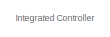
[diagram: root canvas - part 1/2, top left region]
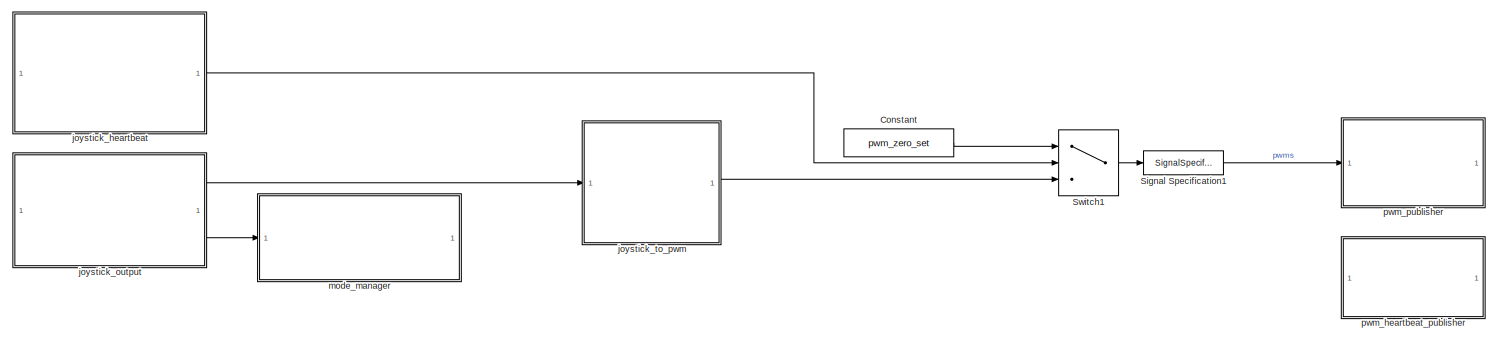
[diagram: root canvas - part 2/2, most of the canvas]
MODEL slx_aeadd88cefd5
KIND model
CONFIG AbsTol = auto
CONFIG EnableMultiTasking = off
CONFIG FixedStep = auto
CONFIG MaxStep = auto
CONFIG MinStep = auto
CONFIG RelTol = 1e-3
CONFIG SampleTimeConstraint = Unconstrained
CONFIG SolverName = FixedStepDiscrete
CONFIG StartTime = 0.0
CONFIG StopTime = inf
BLOCK [Constant] Constant
  OutDataTypeStr = int32
  Value = pwm_zero_set
BLOCK [SignalSpecification] Signal Specification1
  Dimensions = [8 1]
  OutDataTypeStr = int32
BLOCK [Switch] Switch1
  Criteria = u2 > Threshold
  InputSameDT = off
  SaturateOnIntegerOverflow = off
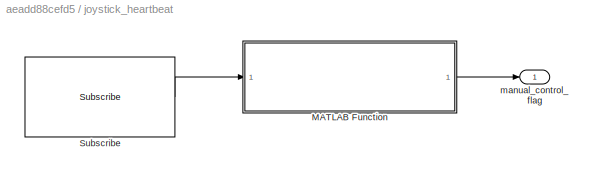
BLOCK [SubSystem] joystick_heartbeat
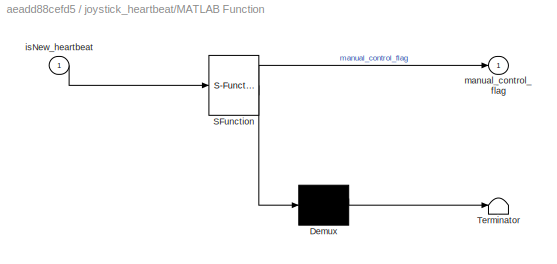
BLOCK [SubSystem] joystick_heartbeat/MATLAB Function
  ErrorFcn = Stateflow.Translate.translate
  PermitHierarchicalResolution = ExplicitOnly
  SFBlockType = MATLAB Function
  TreatAsAtomicUnit = on
BLOCK [Demux] joystick_heartbeat/MATLAB Function/ Demux 
  Outputs = 1
BLOCK [S-Function] joystick_heartbeat/MATLAB Function/ SFunction 
  EnableBusSupport = off
  FunctionName = sf_sfun
  Parameters = dt_control
  PortCounts = [1 2]
  SFcnIsStateOwnerBlock = off
  SFunctionDeploymentMode = off
  Tag = Stateflow S-Function 15
BLOCK [Terminator] joystick_heartbeat/MATLAB Function/ Terminator 
BLOCK [Inport] joystick_heartbeat/MATLAB Function/isNew_heartbeat
BLOCK [Outport] joystick_heartbeat/MATLAB Function/manual_control_flag
BLOCK [Reference] joystick_heartbeat/Subscribe  REF=ros2lib/Subscribe  (lib defined in slx_3c1549211f48)
  SourceBlock = ros2lib/Subscribe
  SourceType = ROS2 Subscribe
BLOCK [Outport] joystick_heartbeat/manual_control_flag
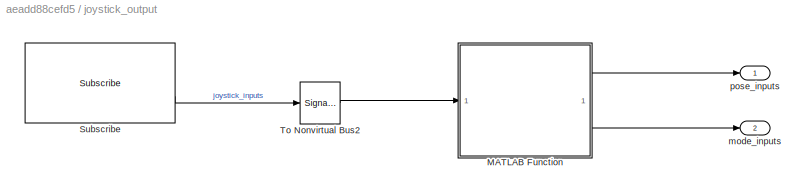
BLOCK [SubSystem] joystick_output
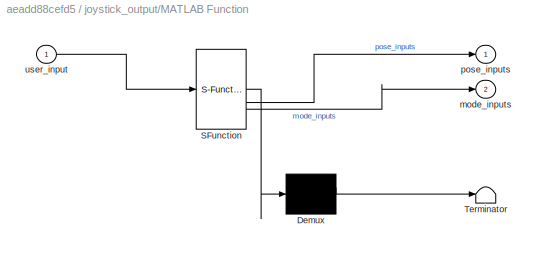
BLOCK [SubSystem] joystick_output/MATLAB Function
  ErrorFcn = Stateflow.Translate.translate
  PermitHierarchicalResolution = ExplicitOnly
  SFBlockType = MATLAB Function
  TreatAsAtomicUnit = on
BLOCK [Demux] joystick_output/MATLAB Function/ Demux 
  Outputs = 1
BLOCK [S-Function] joystick_output/MATLAB Function/ SFunction 
  EnableBusSupport = off
  FunctionName = sf_sfun
  PortCounts = [1 3]
  SFcnIsStateOwnerBlock = off
  SFunctionDeploymentMode = off
  Tag = Stateflow S-Function 20
BLOCK [Terminator] joystick_output/MATLAB Function/ Terminator 
BLOCK [Outport] joystick_output/MATLAB Function/mode_inputs
  Port = 2
BLOCK [Outport] joystick_output/MATLAB Function/pose_inputs
BLOCK [Inport] joystick_output/MATLAB Function/user_input
BLOCK [Reference] joystick_output/Subscribe  REF=ros2lib/Subscribe  (lib defined in slx_3c1549211f48)
  SourceBlock = ros2lib/Subscribe
  SourceType = ROS2 Subscribe
BLOCK [SignalConversion] joystick_output/To Nonvirtual Bus2
  ConversionOutput = Nonvirtual bus
  OutDataTypeStr = Bus: SL_Bus_custom_interfaces_Gamepad
  OverrideOpt = off
BLOCK [Outport] joystick_output/mode_inputs
  Port = 2
BLOCK [Outport] joystick_output/pose_inputs
BLOCK [SubSystem] joystick_to_pwm
  ReferencedSubsystem = joystick_to_pwm
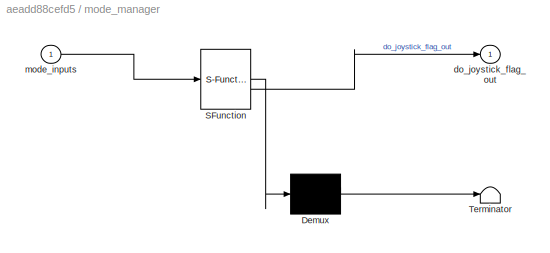
BLOCK [SubSystem] mode_manager
  ErrorFcn = Stateflow.Translate.translate
  PermitHierarchicalResolution = ExplicitOnly
  SFBlockType = MATLAB Function
  TreatAsAtomicUnit = on
BLOCK [Demux] mode_manager/ Demux 
  Outputs = 1
BLOCK [S-Function] mode_manager/ SFunction 
  EnableBusSupport = off
  FunctionName = sf_sfun
  PortCounts = [1 2]
  SFcnIsStateOwnerBlock = off
  SFunctionDeploymentMode = off
  Tag = Stateflow S-Function 32
BLOCK [Terminator] mode_manager/ Terminator 
BLOCK [Outport] mode_manager/do_joystick_flag_out
BLOCK [Inport] mode_manager/mode_inputs
BLOCK [SubSystem] pwm_heartbeat_publisher
  ReferencedSubsystem = pwm_heartbeat_publisher
BLOCK [SubSystem] pwm_publisher
  ReferencedSubsystem = pwm_publisher
ANNOTATION (root): Integrated Controller
LINE Constant:1 -> Switch1:1
LINE Signal Specification1:1 -> pwm_publisher:1
LINE Switch1:1 -> Signal Specification1:1
LINE joystick_heartbeat/MATLAB Function:1 -> joystick_heartbeat/manual_control_flag:1
LINE joystick_heartbeat/Subscribe:1 -> joystick_heartbeat/MATLAB Function:1
LINE joystick_heartbeat:1 -> Switch1:2
LINE joystick_output/MATLAB Function:1 -> joystick_output/pose_inputs:1
LINE joystick_output/MATLAB Function:2 -> joystick_output/mode_inputs:1
LINE joystick_output/Subscribe:2 -> joystick_output/To Nonvirtual Bus2:1
LINE joystick_output/To Nonvirtual Bus2:1 -> joystick_output/MATLAB Function:1
LINE joystick_output:1 -> joystick_to_pwm:1
LINE joystick_output:2 -> mode_manager:1
LINE joystick_to_pwm:1 -> Switch1:3
CHART joystick_heartbeat/MATLAB Function states=1 transitions=1
  STATE_LABEL 'eML_blk_kernel()'
  STATE_LABEL 'SCRIPT:\nfunction manual_control_flag = fcn(isNew_heartbeat,dt_control)\n\nmanual_control_flag = heartbeat_interpreter(isNew_heartbeat,dt_control);\n'
CHART joystick_output/MATLAB Function states=1 transitions=1
  STATE_LABEL 'eML_blk_kernel()'
  STATE_LABEL 'SCRIPT:\nfunction [pose_inputs, mode_inputs] = fcn(user_input)\n\n[pose_inputs, mode_inputs] = gamepad_parser(user_input);'
CHART mode_manager states=1 transitions=1
  STATE_LABEL 'eML_blk_kernel()'
  STATE_LABEL 'SCRIPT:\nfunction do_joystick_flag_out   = fcn(mode_inputs)\n    \n[do_joystick_flag_out,~] = mode_manager(mode_inputs);\n'
CHART  states=0 transitions=0
CHART  states=0 transitions=0
CHART  states=0 transitions=0
